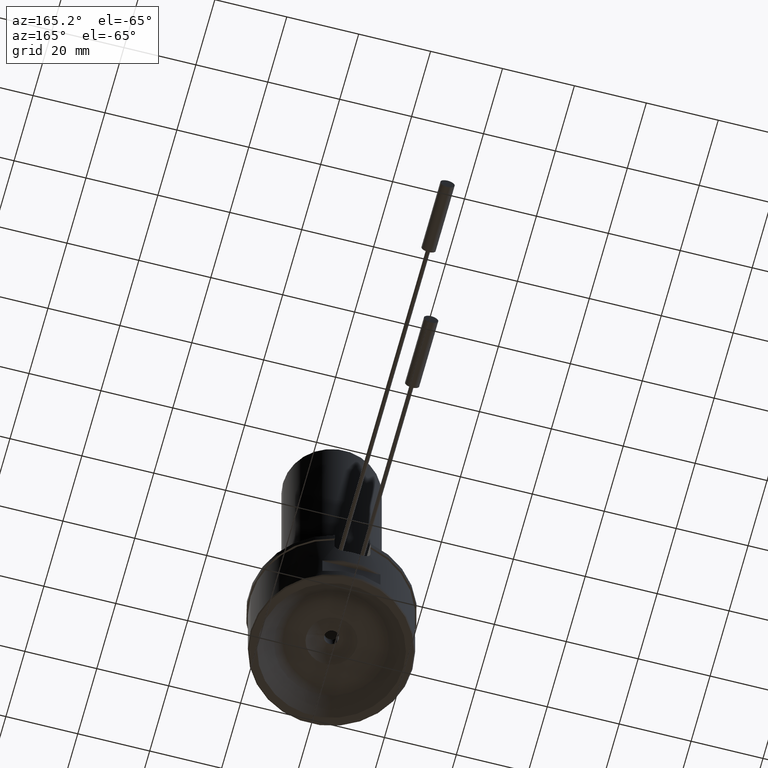
[diagram: clean part render]
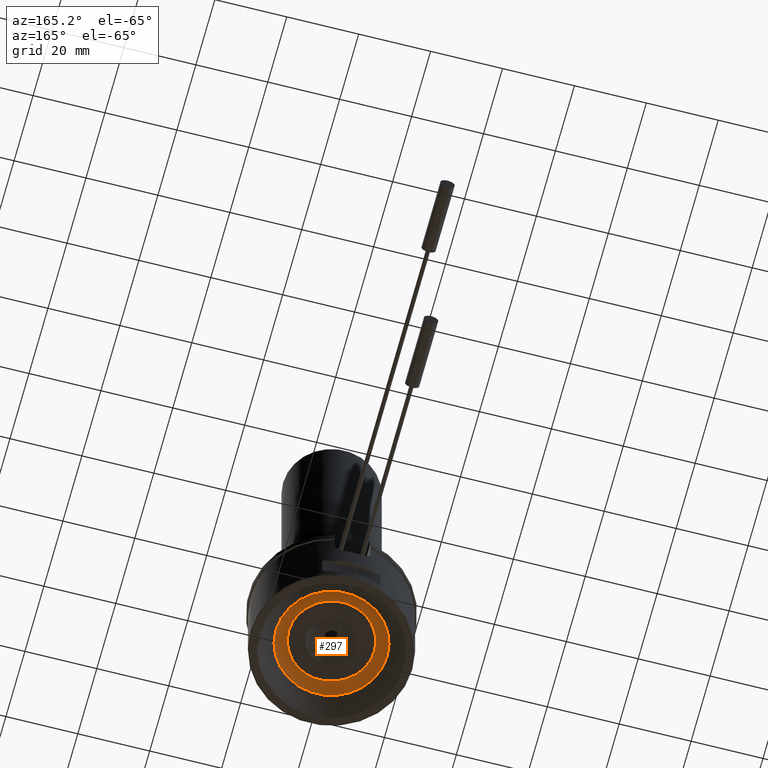
[diagram: same view with one face highlighted and labeled with its STEP entity id]
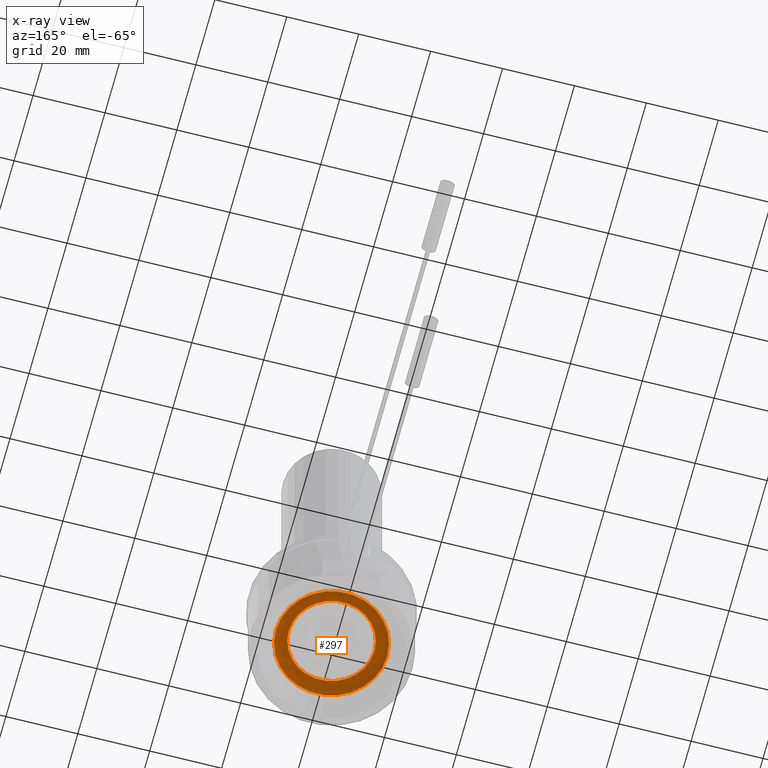
[diagram: x-ray of the same camera — body ghosted, the highlighted face saturated]
A machine part, auxiliary view. The second image highlights one B-rep face of the part: STEP entity #297.
The next image is the same camera in x-ray: the body ghosted, the highlighted face saturated — about 0% of this face is hidden behind the body in this view.
In plain terms, the highlighted toroidal blend (fillet) surface has major radius 11.9289 mm and minor (blend) radius 5 mm.
Its self-contained STEP definition (entity closure, byte-faithful):
#28=TOROIDAL_SURFACE('',#1183,11.9289321881346,5.);
#297=ADVANCED_FACE('',(#391,#392),#28,.F.);
#391=FACE_BOUND('',#471,.T.);
#392=FACE_BOUND('',#472,.T.);
#471=EDGE_LOOP('',(#640));
#472=EDGE_LOOP('',(#641));
#640=ORIENTED_EDGE('',*,*,#973,.F.);
#641=ORIENTED_EDGE('',*,*,#978,.F.);
#865=VERTEX_POINT('',#1885);
#870=VERTEX_POINT('',#1900);
#973=EDGE_CURVE('',#865,#865,#1063,.T.);
#978=EDGE_CURVE('',#870,#870,#1068,.T.);
#1063=CIRCLE('',#1171,15.4644660940673);
#1068=CIRCLE('',#1181,11.9289321881346);
#1171=AXIS2_PLACEMENT_3D('',#1884,#1406,#1407);
#1181=AXIS2_PLACEMENT_3D('',#1899,#1426,#1427);
#1183=AXIS2_PLACEMENT_3D('',#1902,#1430,#1431);
#1406=DIRECTION('',(0.,0.,1.));
#1407=DIRECTION('',(-1.,0.,0.));
#1426=DIRECTION('',(0.,0.,-1.));
#1427=DIRECTION('',(1.,0.,0.));
#1430=DIRECTION('',(0.,0.,1.));
#1431=DIRECTION('',(1.,0.,0.));
#1884=CARTESIAN_POINT('',(0.,0.,4.5355339059327));
#1885=CARTESIAN_POINT('',(-15.4644660940673,0.,4.5355339059327));
#1899=CARTESIAN_POINT('',(0.,0.,5.99999999999997));
#1900=CARTESIAN_POINT('',(11.9289321881346,0.,5.99999999999997));
#1902=CARTESIAN_POINT('',(0.,0.,0.999999999999968));